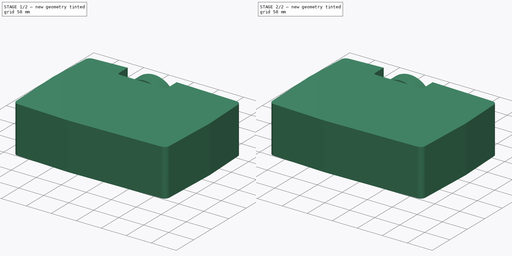
[diagram: build sequence overview — one tinted view per stage of 2, left to right]
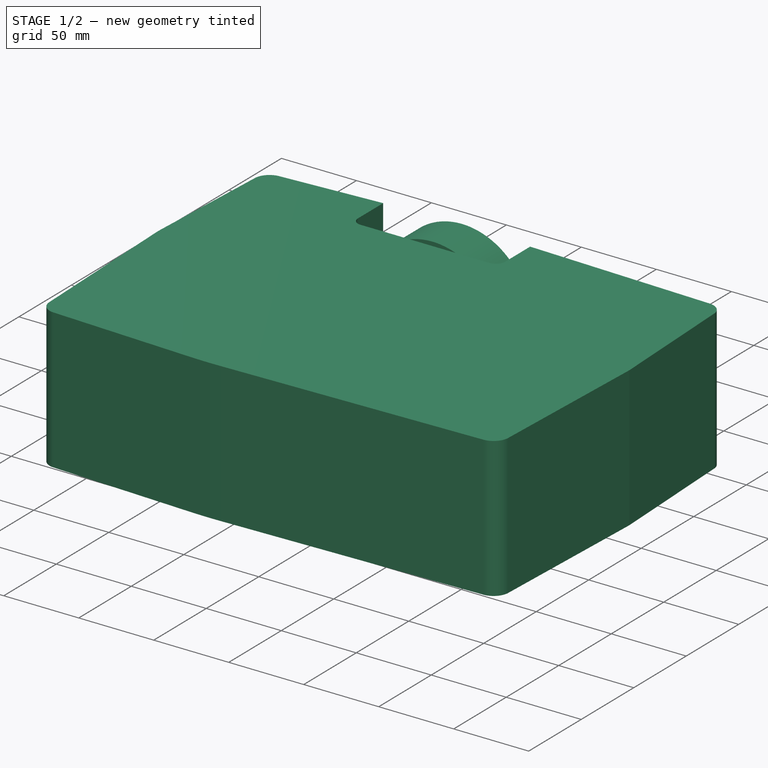
[diagram: stage 1 of 2 — iso view after this stage's code; geometry added in this stage tinted green]
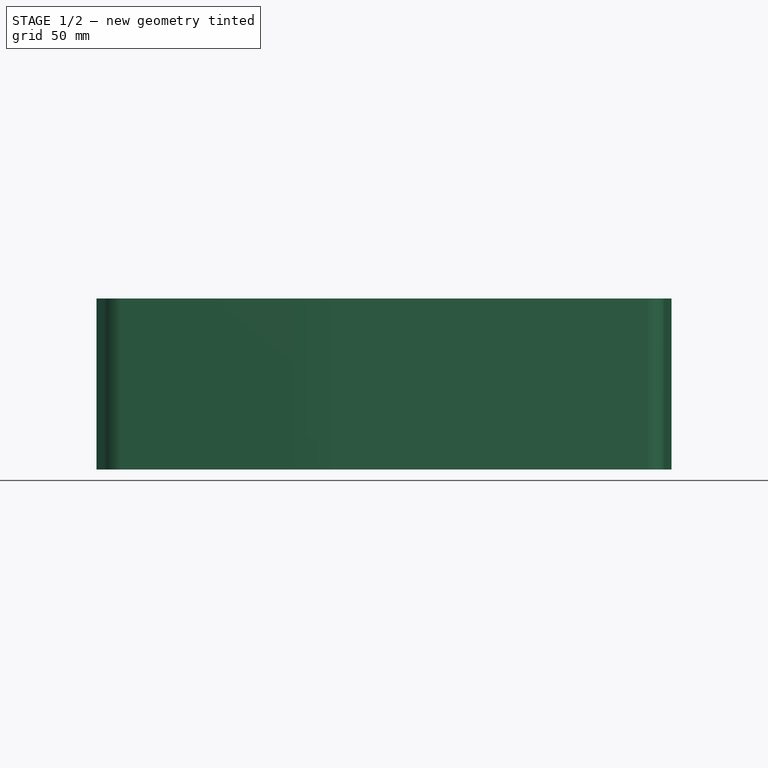
[diagram: stage 1 of 2 — front view after this stage's code; geometry added in this stage tinted green]
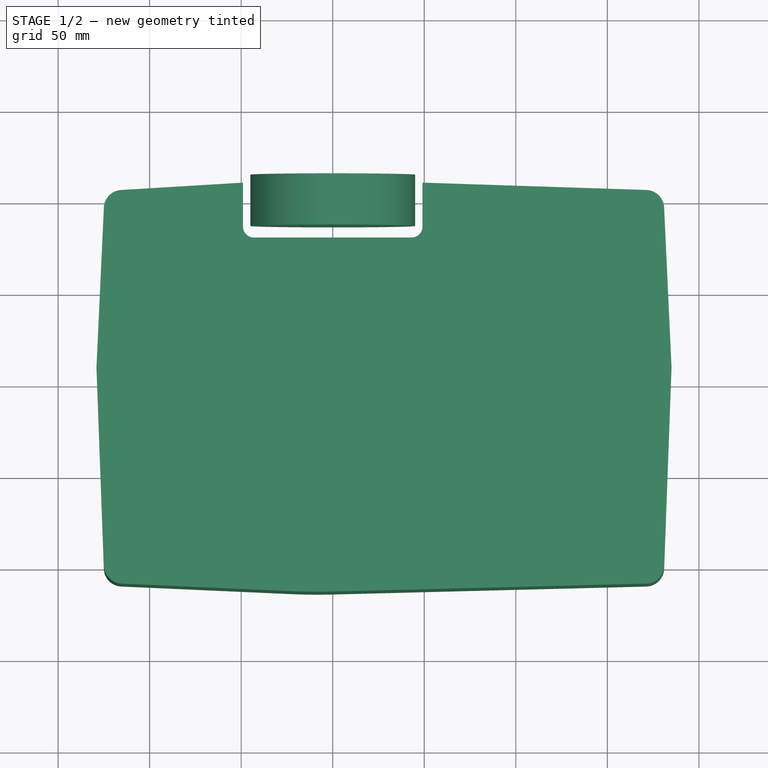
[diagram: stage 1 of 2 — top view after this stage's code; geometry added in this stage tinted green]
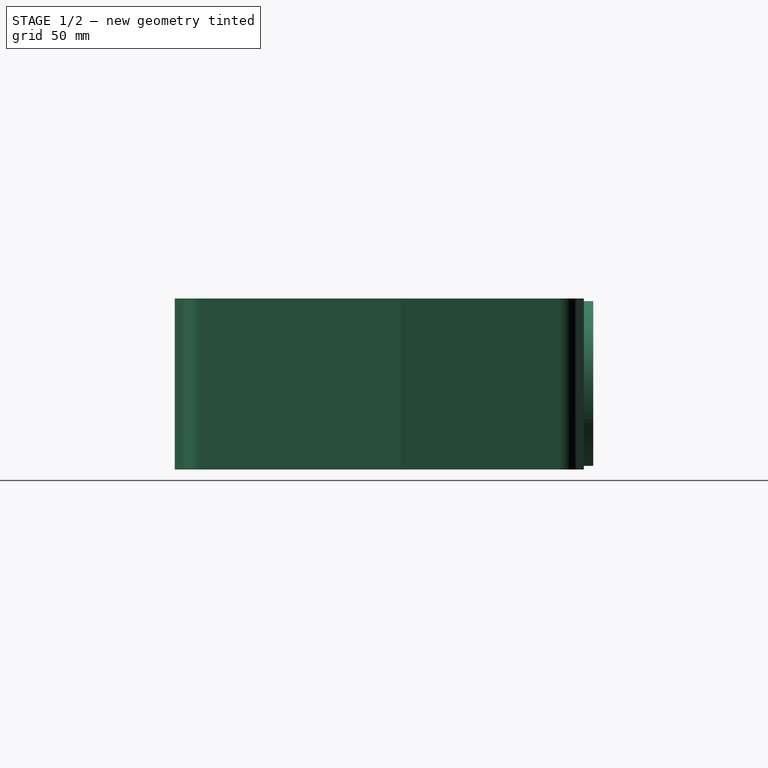
[diagram: stage 1 of 2 — right view after this stage's code; geometry added in this stage tinted green]
FCSTD DOCUMENT  (FreeCAD 0.14R3703 (Git))
Label: proyector
License: CC-BY 3.0
LicenseURL: http://creativecommons.org/licenses/by/3.0/
objects: Sketcher::SketchObject×1, PartDesign::Pad×1, Part::Cylinder×1, Part::Fuse×1, Part::Feature×1
note: 6 computed .brp shape members not serialized (recipe doc carries the construction recipe); baked Part::Feature solids carry a one-line shape summary decoded from their .brp

FEATURE [Sketcher::SketchObject] Sketch
  sketch-geometry (18):
    g0: LineSegment StartX=-115.602 StartY=155.853 StartZ=0 EndX=-49 EndY=159.871 EndZ=0
    g1: LineSegment StartX=-49 StartY=159.871 StartZ=0 EndX=-49 EndY=135.871 EndZ=0
    g2: LineSegment StartX=-43 StartY=129.871 StartZ=0 EndX=43 EndY=129.871 EndZ=0
    g3: LineSegment StartX=49 StartY=135.871 StartZ=0 EndX=49 EndY=159.871 EndZ=0
    g4: LineSegment StartX=49 StartY=159.871 StartZ=0 EndX=171.327 EndY=155.866 EndZ=0
    g5: LineSegment StartX=180.989 StartY=146.335 StartZ=0 EndX=185 EndY=59.8714 EndZ=0
    g6: LineSegment StartX=185 StartY=59.8714 StartZ=0 EndX=180.993 EndY=-49.5286 EndZ=0
    g7: LineSegment StartX=171.253 StartY=-59.1594 StartZ=0 EndX=-1.13747 EndY=-63.5286 EndZ=0
    g8: LineSegment StartX=-21.4438 StartY=-63.3345 StartZ=0 EndX=-115.444 EndY=-59.1528 EndZ=0
    g9: LineSegment StartX=-124.993 StartY=-49.5286 StartZ=0 EndX=-129 EndY=59.8714 EndZ=0
    g10: LineSegment StartX=-129 StartY=59.8714 StartZ=0 EndX=-124.989 EndY=146.335 EndZ=0
    g11: ArcOfCircle CenterX=-115 CenterY=145.871 CenterZ=0 NormalX=0 NormalY=0 NormalZ=1 Radius=10 StartAngle=1.63105 EndAngle=3.09524
    g12: ArcOfCircle CenterX=-115 CenterY=-49.1626 CenterZ=0 NormalX=0 NormalY=0 NormalZ=1 Radius=10 StartAngle=3.1782 EndAngle=4.66793
    g13: ArcOfCircle CenterX=-8.51065 CenterY=227.387 CenterZ=0 NormalX=0 NormalY=0 NormalZ=1 Radius=291.009 StartAngle=4.66793 EndAngle=4.73773
    g14: ArcOfCircle CenterX=171 CenterY=-49.1626 CenterZ=0 NormalX=0 NormalY=0 NormalZ=1 Radius=10 StartAngle=4.73773 EndAngle=6.24658
    g15: ArcOfCircle CenterX=171 CenterY=145.871 CenterZ=0 NormalX=0 NormalY=0 NormalZ=1 Radius=10 StartAngle=0.0463534 EndAngle=1.53807
    g16: ArcOfCircle CenterX=-43 CenterY=135.871 CenterZ=0 NormalX=0 NormalY=0 NormalZ=1 Radius=6 StartAngle=3.14159 EndAngle=4.71239
    g17: ArcOfCircle CenterX=43 CenterY=135.871 CenterZ=0 NormalX=0 NormalY=0 NormalZ=1 Radius=6 StartAngle=4.71239 EndAngle=6.28319
  constraints (44):
    c: Coincident(g0,g1)
    c: Vertical(g1)
    c: Horizontal(g2)
    c: Coincident(g3,g4)
    c: Coincident(g9,g10)
    c: DistanceX(g9,g0) = 80
    c: DistanceX(g0,g3) = 98
    c: Vertical(g3)
    c: Equal(g1,g3)
    c: DistanceY(g0,g9) = -100
    c: Tangent(g0,g11)
    c: Tangent(g10,g11)
    c: Tangent(g9,g12)
    c: Tangent(g8,g12)
    c: Tangent(g8,g13)
    c: Tangent(g7,g13)
    c: Tangent(g7,g14)
    c: Tangent(g6,g14)
    c: Tangent(g5,g15)
    c: Tangent(g4,g15)
    c: Tangent(g1,g16)
    c: Tangent(g2,g16)
    c: Tangent(g2,g17)
    c: Tangent(g3,g17)
    c: Equal(g10,g5)
    c: Equal(g9,g6)
    c: DistanceX(g9,g5) = 314
    c: Equal(g11,g15)
    c: Coincident(g6,g5)
    c: Equal(g15,g14)
    c: DistanceY(g3,g7) = -223.4
    c: Symmetric(g2,g2,g-2)
    c: DistanceX(g9,g11) = 14
    c: DistanceY(g11,g0) = 14
    c: DistanceY(g0,g2) = -30
    c: DistanceY(g2,g3) = 30
    c: Equal(g11,g12)
    c: DistanceY(g3,g5) = -100
    c: DistanceY(g1,g0) = 24
    c: DistanceY(g3,g15) = -14
    c: Radius(g14) = 10
    c: DistanceX(g9,g12) = 14
    c: DistanceX(g14,g5) = 14
    c: DistanceY(g7,g6) = 14
FEATURE [PartDesign::Pad] Pad
  Length = 93.4
  Length2 = 100
  Sketch = -> Sketch
  Type = 0
FEATURE [Part::Cylinder] Cylinder  label="Cilindro"
  Angle = 360
  Height = 28
  Placement = pos=(0,137,47) rot=(-1,0,0;1.5708rad)
  Radius = 45
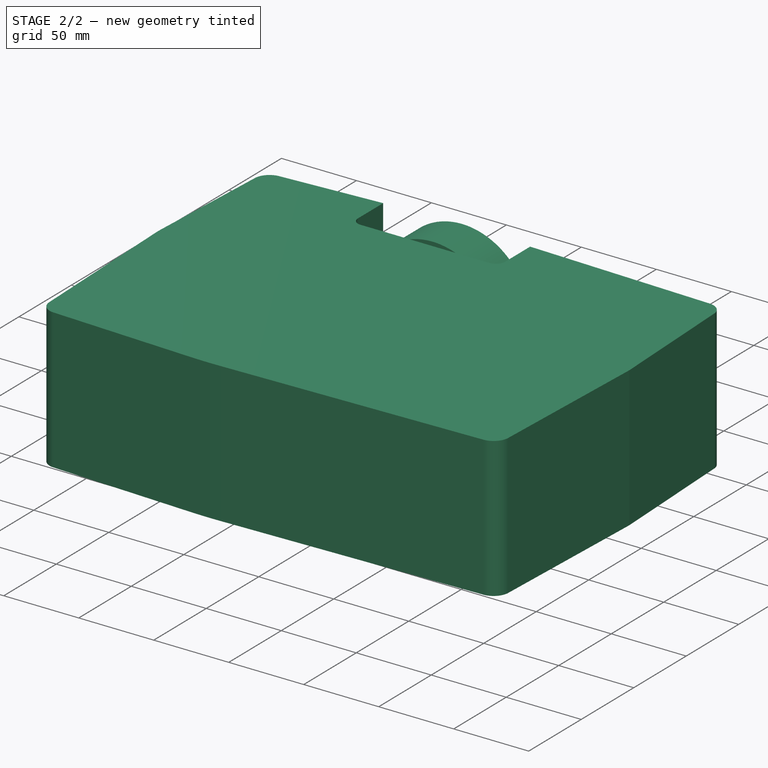
[diagram: stage 2 of 2 — iso view after this stage's code; geometry added in this stage tinted green]
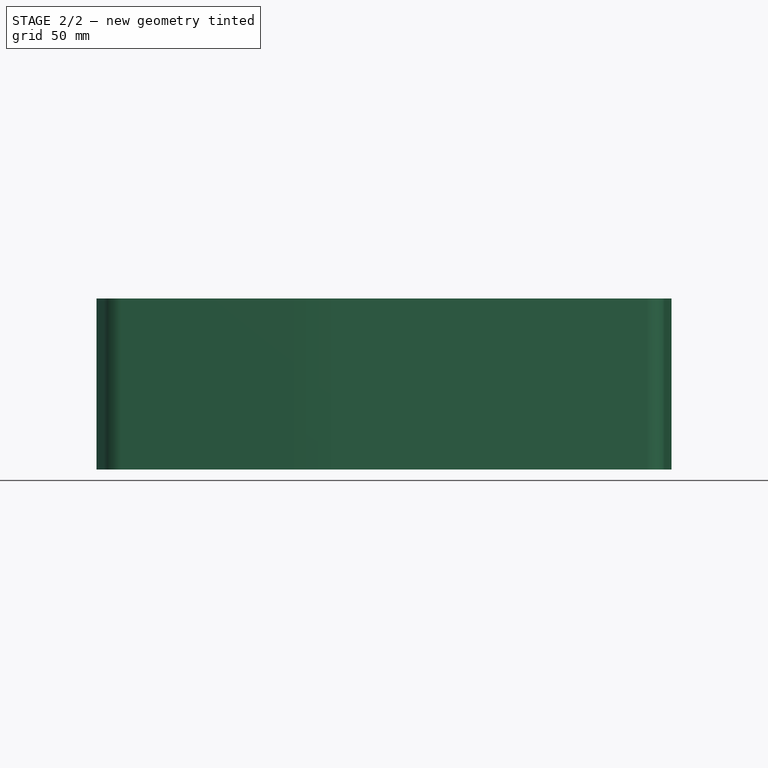
[diagram: stage 2 of 2 — front view after this stage's code; geometry added in this stage tinted green]
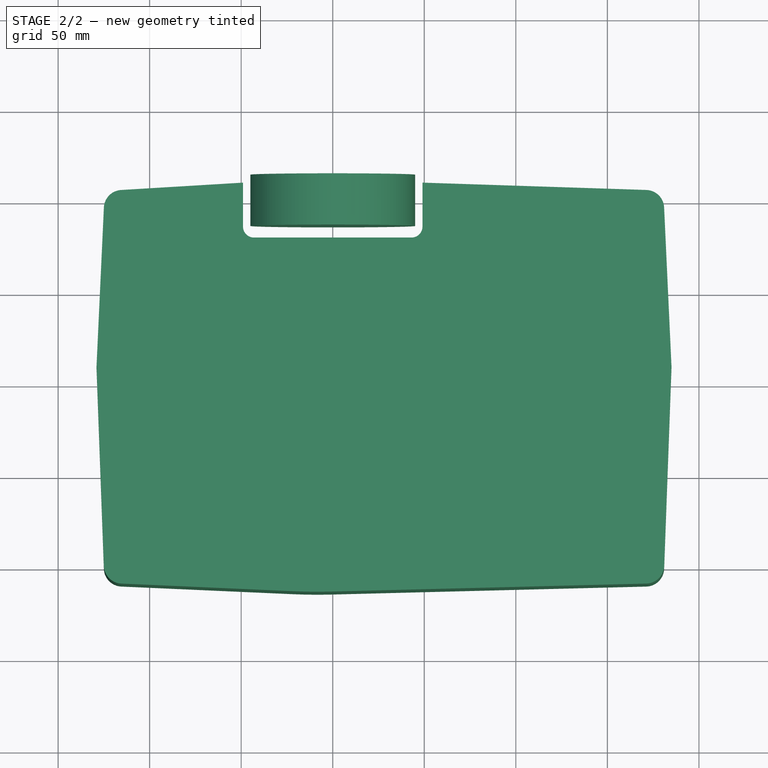
[diagram: stage 2 of 2 — top view after this stage's code; geometry added in this stage tinted green]
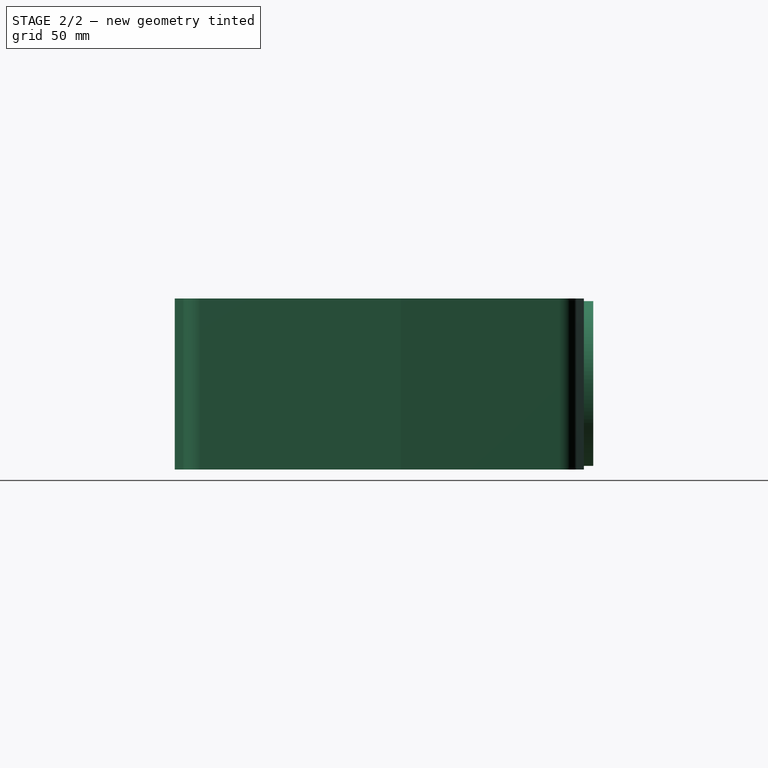
[diagram: stage 2 of 2 — right view after this stage's code; geometry added in this stage tinted green]
FEATURE [Part::Fuse] Fusion
  Base = -> Pad
  Tool = -> Cylinder
FEATURE [Part::Feature] Fusion001  label="proyector"
  shape: bbox 314 x 228.6 x 93.4 mm, 23 faces, 2 solids (baked)
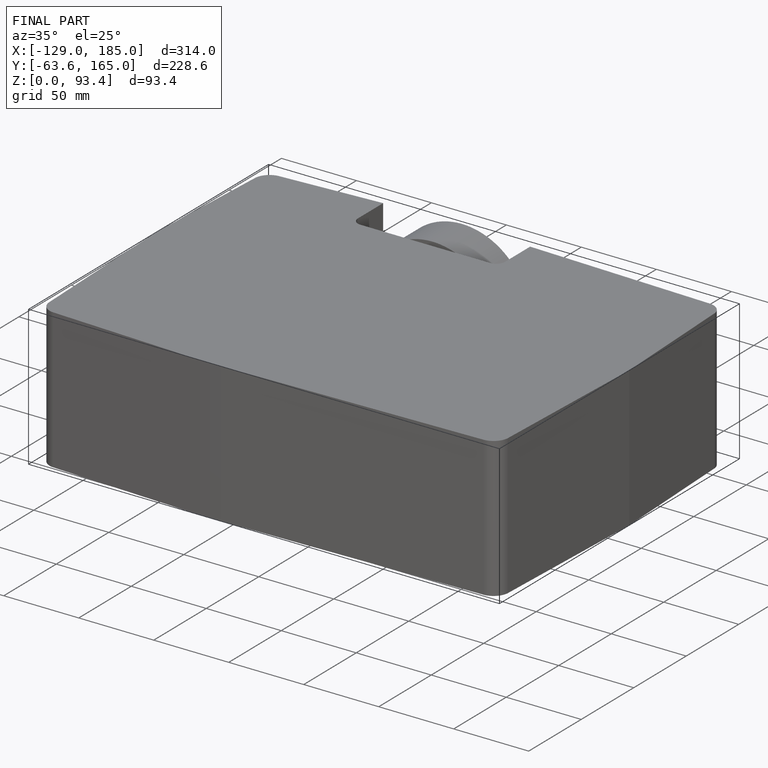
[diagram: finished part — iso view with bounding-box wireframe]
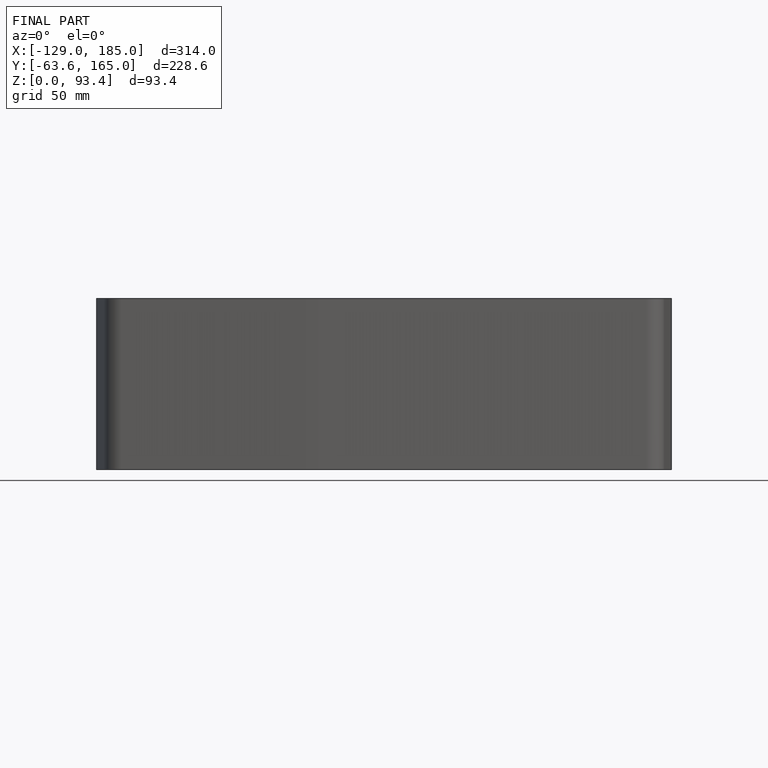
[diagram: finished part — front view with bounding-box wireframe]
